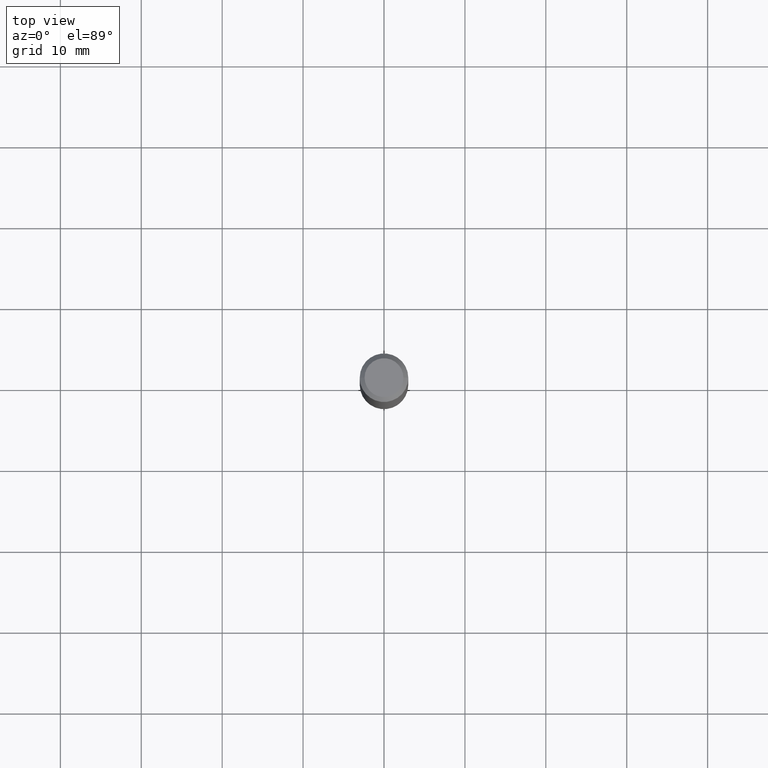
[diagram: clean part render]
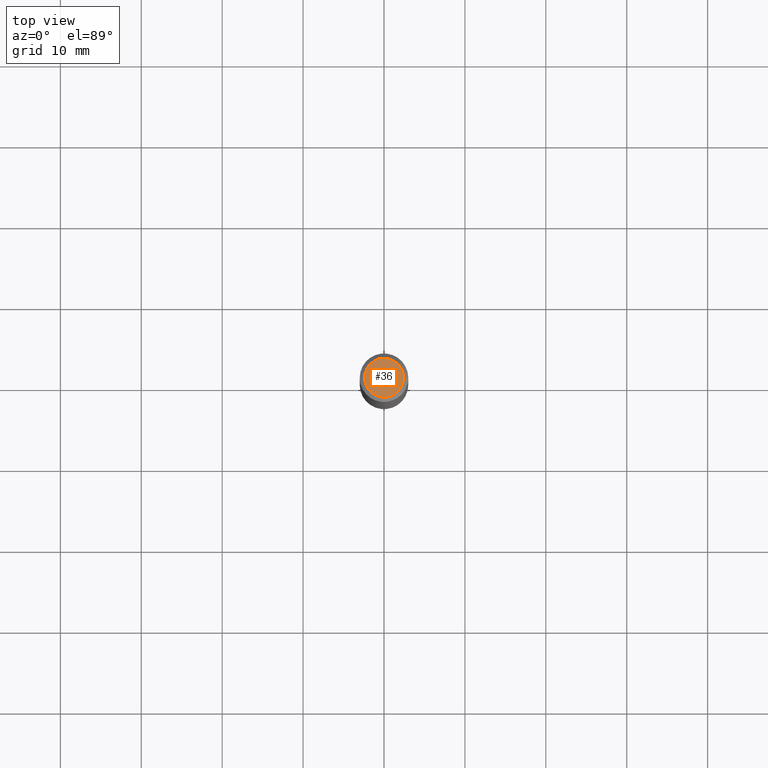
[diagram: same view with one face highlighted and labeled with its STEP entity id]
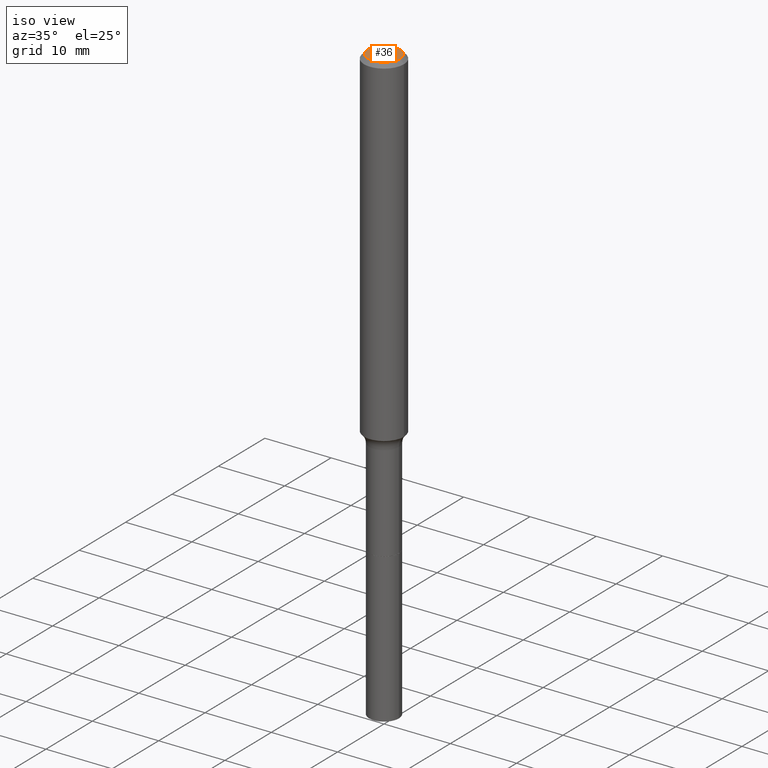
[diagram: same view with one face highlighted and labeled with its STEP entity id]
A machine part, top view. The second image highlights one B-rep face of the part: STEP entity #36.
A second angle (iso view) of the same face is appended — the face is thin or edge-on in the first view.
In plain terms, the highlighted planar face has unit normal (0, -0, -1).
Its self-contained STEP definition (entity closure, byte-faithful):
#36 = ADVANCED_FACE ( 'NONE', ( #439 ), #272, .F. ) ;
#57 = ORIENTED_EDGE ( 'NONE', *, *, #187, .T. ) ;
#63 = VERTEX_POINT ( 'NONE', #164 ) ;
#79 = DIRECTION ( 'NONE',  ( -1.000000000000000000, 6.982962677686265922E-15, -4.876176775795935793E-29 ) ) ;
#110 = CIRCLE ( 'NONE', #335, 0.09447999999999998066 ) ;
#119 = EDGE_CURVE ( 'NONE', #511, #63, #110, .T. ) ;
#133 = DIRECTION ( 'NONE',  ( -2.445468806185136597E-29, 3.491481338843145583E-15, 1.000000000000000000 ) ) ;
#138 = AXIS2_PLACEMENT_3D ( 'NONE', #432, #194, #79 ) ;
#164 = CARTESIAN_POINT ( 'NONE',  ( 0.09447999999999998066, -7.704367267948739676E-16, -3.085620075131172158E-17 ) ) ;
#187 = EDGE_CURVE ( 'NONE', #63, #511, #225, .T. ) ;
#194 = DIRECTION ( 'NONE',  ( 2.438088387897960049E-29, -3.491481338843145188E-15, -1.000000000000000000 ) ) ;
#213 = DIRECTION ( 'NONE',  ( -2.445468806185136597E-29, 3.491481338843145583E-15, 1.000000000000000000 ) ) ;
#225 = CIRCLE ( 'NONE', #286, 0.09447999999999998066 ) ;
#239 = ORIENTED_EDGE ( 'NONE', *, *, #119, .T. ) ;
#247 = DIRECTION ( 'NONE',  ( 1.000000000000000000, -6.982962677686267499E-15, 4.875432709231658792E-29 ) ) ;
#272 = PLANE ( 'NONE',  #138 ) ;
#285 = CARTESIAN_POINT ( 'NONE',  ( 7.545787641473140628E-46, -1.077338491108201769E-31, -3.085620075131671975E-17 ) ) ;
#286 = AXIS2_PLACEMENT_3D ( 'NONE', #290, #133, #409 ) ;
#290 = CARTESIAN_POINT ( 'NONE',  ( 7.545787641473140628E-46, -1.077338491108201769E-31, -3.085620075131671975E-17 ) ) ;
#335 = AXIS2_PLACEMENT_3D ( 'NONE', #285, #213, #247 ) ;
#350 = CARTESIAN_POINT ( 'NONE',  ( -0.09447999999999998066, 7.009847083995354710E-16, -3.085620075132147757E-17 ) ) ;
#409 = DIRECTION ( 'NONE',  ( 1.000000000000000000, -6.982962677686267499E-15, 4.875432709231658792E-29 ) ) ;
#432 = CARTESIAN_POINT ( 'NONE',  ( 3.772893820736570314E-46, -5.386692455541008845E-32, -1.542810037565835988E-17 ) ) ;
#439 = FACE_OUTER_BOUND ( 'NONE', #482, .T. ) ;
#482 = EDGE_LOOP ( 'NONE', ( #239, #57 ) ) ;
#511 = VERTEX_POINT ( 'NONE', #350 ) ;